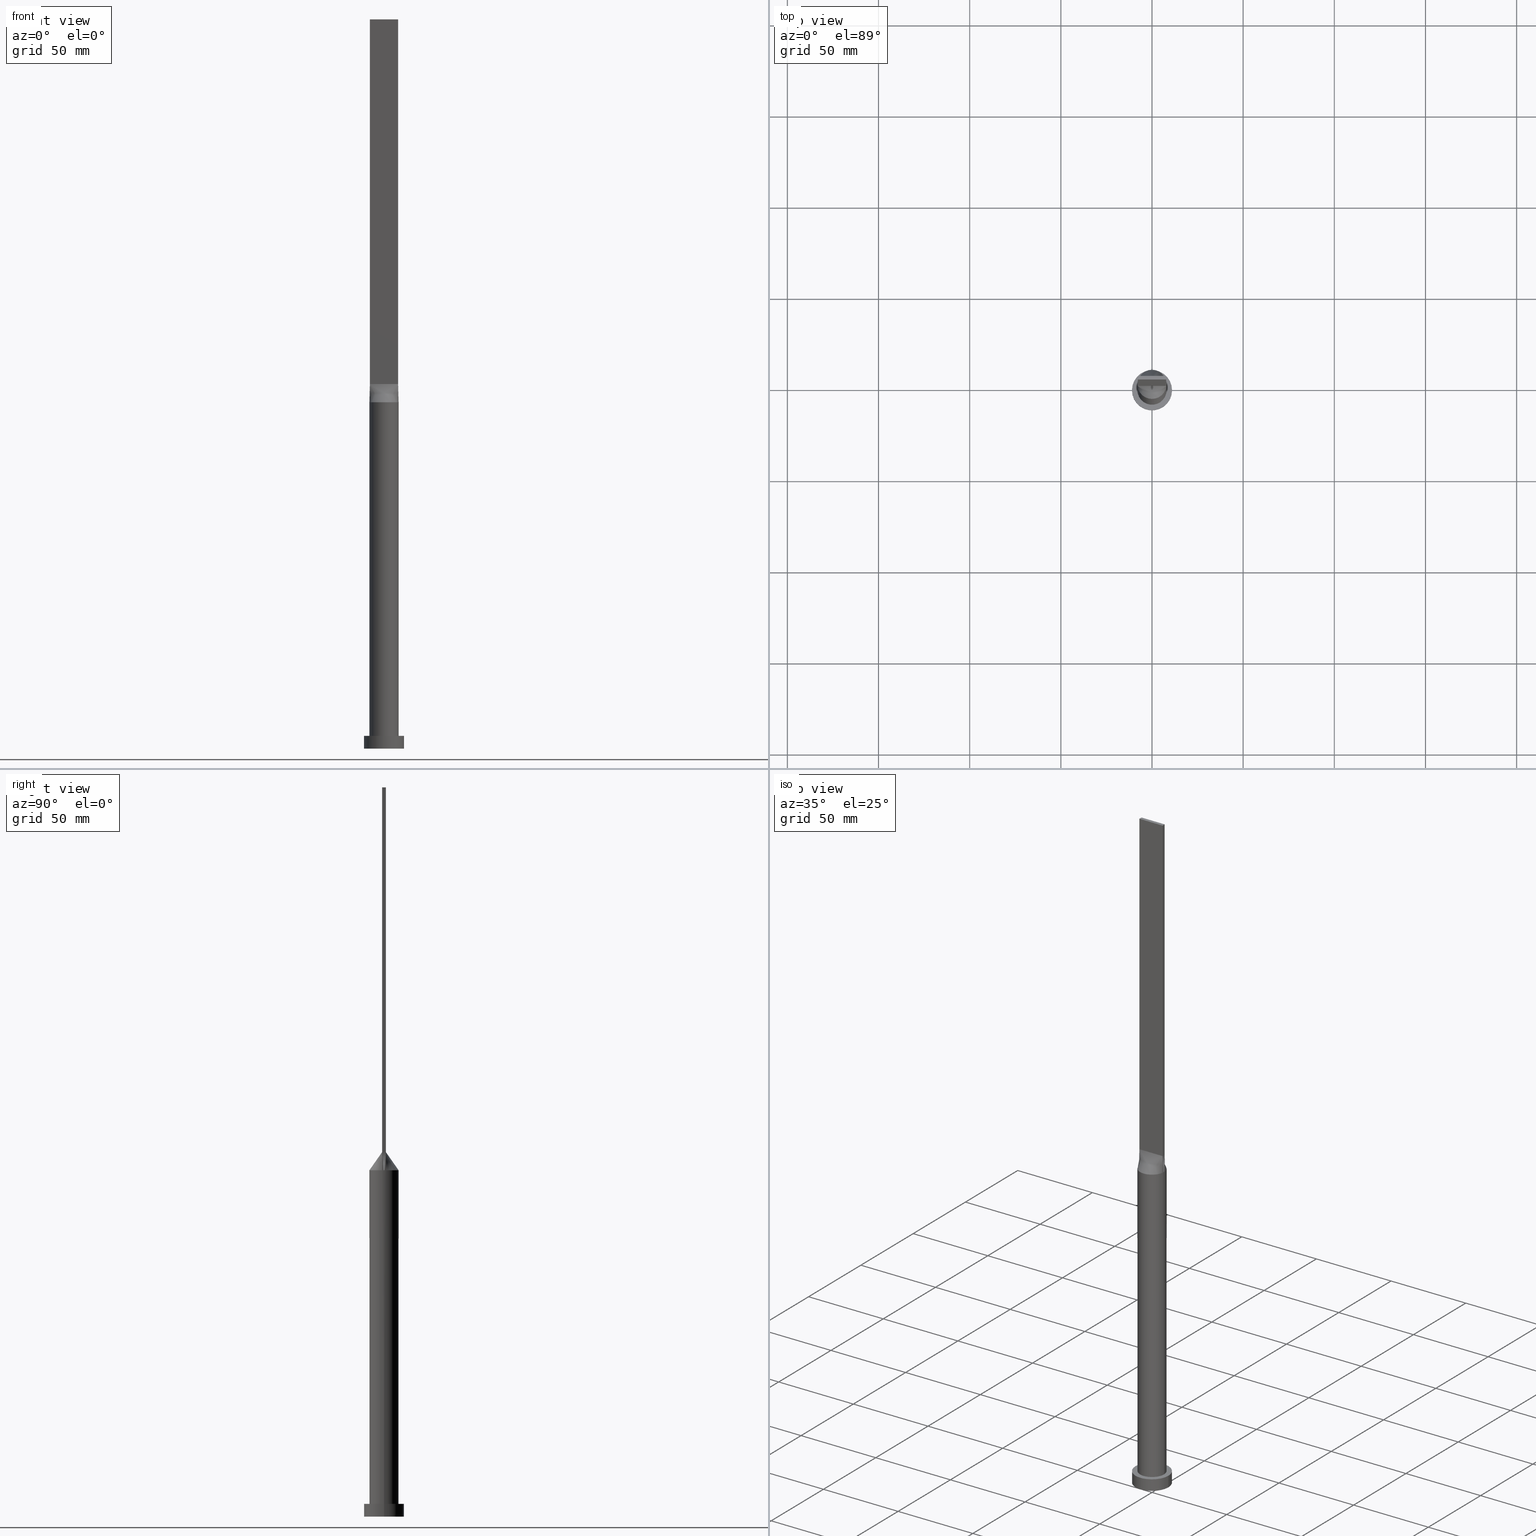
[diagram: canonical four-view strip — front | top / right | iso, engineering-drawing reading convention]
A machine part, canonical four-view strip (front | top / right | iso — engineering-drawing reading convention). The complete STEP part file that produces these views, byte-faithful:
ISO-10303-21;
HEADER;
FILE_DESCRIPTION (( 'STEP AP203' ),
    '1' );
FILE_NAME ('d282.STEP',
    '2023-02-13T08:49:00',
    ( '' ),
    ( '' ),
    'SwSTEP 2.0',
    'SolidWorks 2019',
    '' );
FILE_SCHEMA (( 'CONFIG_CONTROL_DESIGN' ));
ENDSEC;

DATA;
#1 = FACE_OUTER_BOUND ( 'NONE', #43, .T. ) ;
#2 = DIRECTION ( 'NONE',  ( 1.000000000000000000, 0.000000000000000000, -0.000000000000000000 ) ) ;
#3 = CARTESIAN_POINT ( 'NONE',  ( 1.614583333333331927, -0.9999999999999991118, 200.0000000000000568 ) ) ;
#4 = AXIS2_PLACEMENT_3D ( 'NONE', #69, #56, #309 ) ;
#5 = SECURITY_CLASSIFICATION ( '', '', #463 ) ;
#6 = CARTESIAN_POINT ( 'NONE',  ( -6.511821874825411527, -4.668925682402791821, 190.0000000000000284 ) ) ;
#7 = VERTEX_POINT ( 'NONE', #403 ) ;
#8 = CARTESIAN_POINT ( 'NONE',  ( 7.977894035085165036, -0.6853196604410977111, 190.0000000000000000 ) ) ;
#9 = AXIS2_PLACEMENT_3D ( 'NONE', #481, #600, #211 ) ;
#10 = CARTESIAN_POINT ( 'NONE',  ( 7.849610172922079521, 1.679519592204998801, 190.0000000000000284 ) ) ;
#11 = CARTESIAN_POINT ( 'NONE',  ( 0.000000000000000000, 0.000000000000000000, 7.000000000000000000 ) ) ;
#12 = ORIENTED_EDGE ( 'NONE', *, *, #468, .T. ) ;
#13 = ORIENTED_EDGE ( 'NONE', *, *, #213, .F. ) ;
#14 = CIRCLE ( 'NONE', #32, 8.000000000000000000 ) ;
#15 = VERTEX_POINT ( 'NONE', #208 ) ;
#16 = DIRECTION ( 'NONE',  ( -0.000000000000000000, -0.000000000000000000, -1.000000000000000000 ) ) ;
#17 = ORIENTED_EDGE ( 'NONE', *, *, #77, .F. ) ;
#18 = ORIENTED_EDGE ( 'NONE', *, *, #243, .F. ) ;
#19 = FACE_OUTER_BOUND ( 'NONE', #149, .T. ) ;
#20 = AXIS2_PLACEMENT_3D ( 'NONE', #532, #287, #541 ) ;
#21 = DIRECTION ( 'NONE',  ( 0.000000000000000000, 0.000000000000000000, 1.000000000000000000 ) ) ;
#22 = CARTESIAN_POINT ( 'NONE',  ( 7.104166666666666963, 1.000000000000000000, 200.0000000000000000 ) ) ;
#23 = DIRECTION ( 'NONE',  ( -0.000000000000000000, -0.000000000000000000, -1.000000000000000000 ) ) ;
#24 = CARTESIAN_POINT ( 'NONE',  ( -7.104166666666667851, 1.000000000000000000, 200.0000000000000000 ) ) ;
#25 = ADVANCED_FACE ( 'NONE', ( #501 ), #350, .T. ) ;
#26 = CARTESIAN_POINT ( 'NONE',  ( -7.750000000000000000, 1.000000000000000000, 200.0000000000000000 ) ) ;
#27 = CARTESIAN_POINT ( 'NONE',  ( -5.183259239191613688, 6.116644610143057825, 189.9999999999999716 ) ) ;
#28 = CARTESIAN_POINT ( 'NONE',  ( -7.750000000000000000, 1.000000000000000000, 200.0000000000000000 ) ) ;
#29 = CARTESIAN_POINT ( 'NONE',  ( -5.562660223239390689, 5.770452176164420521, 190.0000000000000568 ) ) ;
#30 = CIRCLE ( 'NONE', #469, 8.000000000000000000 ) ;
#31 = LINE ( 'NONE', #274, #522 ) ;
#32 = AXIS2_PLACEMENT_3D ( 'NONE', #314, #580, #521 ) ;
#33 = CARTESIAN_POINT ( 'NONE',  ( -1.614583333333333259, 1.000000000000000000, 200.0000000000000284 ) ) ;
#34 = ADVANCED_FACE ( 'NONE', ( #554 ), #451, .F. ) ;
#35 = CARTESIAN_POINT ( 'NONE',  ( -7.934222933072202721, -1.023770701041571973, 190.0000000000000000 ) ) ;
#36 = CARTESIAN_POINT ( 'NONE',  ( 1.614583333333333481, 1.000000000000000000, 200.0000000000000000 ) ) ;
#37 = CYLINDRICAL_SURFACE ( 'NONE', #201, 8.000000000000000000 ) ;
#38 = CARTESIAN_POINT ( 'NONE',  ( 0.5861720261543107435, -8.000000000000001776, 190.0000000000000853 ) ) ;
#39 = EDGE_CURVE ( 'NONE', #614, #346, #166, .T. ) ;
#40 = VECTOR ( 'NONE', #383, 1000.000000000000114 ) ;
#41 = ORGANIZATION ( 'NEUR�EN�', 'NEUR�EN�', '' ) ;
#42 = CARTESIAN_POINT ( 'NONE',  ( 3.229166666666666519, -0.9999999999999993339, 200.0000000000000284 ) ) ;
#43 = EDGE_LOOP ( 'NONE', ( #405, #516, #506, #399 ) ) ;
#44 = PLANE ( 'NONE',  #277 ) ;
#45 = CARTESIAN_POINT ( 'NONE',  ( -1.172177046651859511, -7.934824862069280726, 189.9999999999999716 ) ) ;
#46 = CARTESIAN_POINT ( 'NONE',  ( 5.183259239191615464, 6.116644610143058713, 190.0000000000000284 ) ) ;
#47 = APPLICATION_PROTOCOL_DEFINITION ( 'international standard', 'config_control_design', 1994, #390 ) ;
#48 = CARTESIAN_POINT ( 'NONE',  ( 0.5861720261543130750, 7.999999999999998224, 190.0000000000000000 ) ) ;
#49 = CARTESIAN_POINT ( 'NONE',  ( 1.172177046651855292, -7.934824862069280726, 190.0000000000000853 ) ) ;
#50 = ORIENTED_EDGE ( 'NONE', *, *, #515, .F. ) ;
#51 = CARTESIAN_POINT ( 'NONE',  ( -4.520833333333331261, -0.9999999999999986677, 200.0000000000000000 ) ) ;
#52 = CC_DESIGN_APPROVAL ( #396, ( #5 ) ) ;
#53 = ADVANCED_FACE ( 'NONE', ( #493 ), #344, .T. ) ;
#54 = EDGE_LOOP ( 'NONE', ( #332, #559, #360, #505 ) ) ;
#55 = ORIENTED_EDGE ( 'NONE', *, *, #585, .F. ) ;
#56 = DIRECTION ( 'NONE',  ( 0.000000000000000000, 0.000000000000000000, 1.000000000000000000 ) ) ;
#57 = CARTESIAN_POINT ( 'NONE',  ( -7.750000000000000000, 1.000000000000000000, 400.0000000000000000 ) ) ;
#58 = ORIENTED_EDGE ( 'NONE', *, *, #64, .F. ) ;
#59 = APPROVAL ( #245, 'NEUR�EN�' ) ;
#60 = ORIENTED_EDGE ( 'NONE', *, *, #319, .F. ) ;
#61 = CARTESIAN_POINT ( 'NONE',  ( 7.750000000000000000, 0.6666666666666671848, 200.0000000000000000 ) ) ;
#62 = B_SPLINE_SURFACE_WITH_KNOTS ( 'NONE', 3, 1, ( 
 ( #290, #398 ),
 ( #392, #598 ),
 ( #144, #335 ),
 ( #539, #345 ),
 ( #484, #549 ),
 ( #6, #51 ),
 ( #186, #591 ),
 ( #490, #85 ),
 ( #248, #450 ),
 ( #134, #96 ),
 ( #283, #137 ),
 ( #207, #406 ),
 ( #294, #331 ),
 ( #45, #495 ),
 ( #402, #202 ),
 ( #38, #89 ),
 ( #49, #640 ),
 ( #236, #286 ),
 ( #444, #3 ),
 ( #551, #599 ),
 ( #435, #636 ),
 ( #488, #42 ),
 ( #348, #240 ),
 ( #438, #191 ),
 ( #395, #594 ),
 ( #140, #545 ),
 ( #94, #114 ),
 ( #210, #465 ),
 ( #218, #461 ),
 ( #415, #101 ) ),
 .UNSPECIFIED., .F., .F., .F.,
 ( 4, 2, 2, 2, 2, 2, 2, 2, 2, 2, 2, 2, 2, 2, 4 ),
 ( 2, 2 ),
 ( 0.000000000000000000, 0.1250000000000000555, 0.1875000000000000555, 0.2500000000000000555, 0.3125000000000000000, 0.3750000000000000000, 0.4374999999999999445, 0.4999999999999999445, 0.5624999999999998890, 0.6249999999999998890, 0.6875000000000000000, 0.7500000000000000000, 0.8125000000000000000, 0.8750000000000000000, 1.000000000000000000 ),
 ( 0.000000000000000000, 1.000000000000000000 ),
 .UNSPECIFIED. ) ;
#63 = EDGE_LOOP ( 'NONE', ( #204, #193 ) ) ;
#64 = EDGE_CURVE ( 'NONE', #190, #7, #306, .T. ) ;
#65 = LINE ( 'NONE', #358, #310 ) ;
#66 = LOCAL_TIME ( 9, 49, 0.000000000000000000, #550 ) ;
#67 = EDGE_LOOP ( 'NONE', ( #260, #108, #17, #147, #195 ) ) ;
#68 = DIRECTION ( 'NONE',  ( 0.000000000000000000, 0.000000000000000000, 1.000000000000000000 ) ) ;
#69 = CARTESIAN_POINT ( 'NONE',  ( 0.000000000000000000, 0.000000000000000000, 7.000000000000000000 ) ) ;
#70 = LINE ( 'NONE', #322, #154 ) ;
#71 = CARTESIAN_POINT ( 'NONE',  ( 1.172177046651856624, 7.934824862069278950, 190.0000000000000284 ) ) ;
#72 = EDGE_CURVE ( 'NONE', #229, #198, #408, .T. ) ;
#73 = CARTESIAN_POINT ( 'NONE',  ( -7.750000000000000000, -0.6666666666666648533, 200.0000000000000000 ) ) ;
#74 = CARTESIAN_POINT ( 'NONE',  ( 0.5861720261543130750, 7.999999999999998224, 190.0000000000000000 ) ) ;
#75 = CARTESIAN_POINT ( 'NONE',  ( 8.000000000000000000, 9.797174393178825657E-16, 190.0000000000000000 ) ) ;
#76 = DIRECTION ( 'NONE',  ( 0.000000000000000000, 0.000000000000000000, 1.000000000000000000 ) ) ;
#77 = EDGE_CURVE ( 'NONE', #253, #250, #132, .T. ) ;
#78 = LINE ( 'NONE', #163, #351 ) ;
#79 = CARTESIAN_POINT ( 'NONE',  ( 0.3229166666666666297, 1.000000000000000000, 200.0000000000000000 ) ) ;
#80 = CIRCLE ( 'NONE', #448, 11.00000000000000000 ) ;
#81 = CARTESIAN_POINT ( 'NONE',  ( 11.00000000000000000, 1.347111479062088405E-15, 0.000000000000000000 ) ) ;
#82 = FACE_OUTER_BOUND ( 'NONE', #216, .T. ) ;
#83 = DATE_TIME_ROLE ( 'creation_date' ) ;
#84 = CARTESIAN_POINT ( 'NONE',  ( -3.862537548001455878, 7.028047916340264045, 190.0000000000000284 ) ) ;
#85 = CARTESIAN_POINT ( 'NONE',  ( -3.552083333333331705, -0.9999999999999986677, 200.0000000000000000 ) ) ;
#86 = DIRECTION ( 'NONE',  ( -1.000000000000000000, 0.000000000000000000, 0.000000000000000000 ) ) ;
#87 = CARTESIAN_POINT ( 'NONE',  ( -0.5861720261543129640, 7.999999999999998224, 189.9999999999999432 ) ) ;
#88 = AXIS2_PLACEMENT_3D ( 'NONE', #388, #441, #605 ) ;
#89 = CARTESIAN_POINT ( 'NONE',  ( 0.3229166666666669627, -0.9999999999999991118, 200.0000000000000284 ) ) ;
#90 = EDGE_CURVE ( 'NONE', #346, #555, #165, .T. ) ;
#91 = VERTEX_POINT ( 'NONE', #279 ) ;
#92 = CARTESIAN_POINT ( 'NONE',  ( 7.934252830235720033, 1.023774570959714802, 190.0000000000000000 ) ) ;
#93 = VECTOR ( 'NONE', #231, 1000.000000000000000 ) ;
#94 = CARTESIAN_POINT ( 'NONE',  ( 7.192469010134844964, -3.526369025759696907, 189.9999999999999432 ) ) ;
#95 = CARTESIAN_POINT ( 'NONE',  ( 1.172177046651856624, 7.934824862069278950, 190.0000000000000284 ) ) ;
#96 = CARTESIAN_POINT ( 'NONE',  ( -2.583333333333332593, -0.9999999999999988898, 200.0000000000000000 ) ) ;
#97 = CALENDAR_DATE ( 2023, 13, 2 ) ;
#98 = EDGE_CURVE ( 'NONE', #563, #91, #572, .T. ) ;
#99 = LINE ( 'NONE', #244, #256 ) ;
#100 = CALENDAR_DATE ( 2023, 13, 2 ) ;
#101 = CARTESIAN_POINT ( 'NONE',  ( 7.750000000000000000, -0.9999999999999997780, 200.0000000000000000 ) ) ;
#102 = CIRCLE ( 'NONE', #199, 8.000000000000000000 ) ;
#103 = CC_DESIGN_SECURITY_CLASSIFICATION ( #5, ( #120 ) ) ;
#104 = ORIENTED_EDGE ( 'NONE', *, *, #494, .F. ) ;
#105 = ORIENTED_EDGE ( 'NONE', *, *, #624, .F. ) ;
#106 = CARTESIAN_POINT ( 'NONE',  ( -11.00000000000000000, 0.000000000000000000, 7.000000000000000000 ) ) ;
#107 = CARTESIAN_POINT ( 'NONE',  ( 7.849610172922079521, 1.679519592204998801, 190.0000000000000284 ) ) ;
#108 = ORIENTED_EDGE ( 'NONE', *, *, #254, .T. ) ;
#109 = APPROVAL_STATUS ( 'not_yet_approved' ) ;
#110 = DIRECTION ( 'NONE',  ( -0.000000000000000000, -0.000000000000000000, -1.000000000000000000 ) ) ;
#111 = DIRECTION ( 'NONE',  ( 0.000000000000000000, 0.000000000000000000, 1.000000000000000000 ) ) ;
#112 = CC_DESIGN_APPROVAL ( #519, ( #120 ) ) ;
#113 = COORDINATED_UNIVERSAL_TIME_OFFSET ( 1, 0, .AHEAD. ) ;
#114 = CARTESIAN_POINT ( 'NONE',  ( 5.489583333333333925, -0.9999999999999995559, 200.0000000000000000 ) ) ;
#115 = ORIENTED_EDGE ( 'NONE', *, *, #39, .T. ) ;
#116 = LINE ( 'NONE', #75, #215 ) ;
#117 = AXIS2_PLACEMENT_3D ( 'NONE', #548, #443, #2 ) ;
#118 = DIRECTION ( 'NONE',  ( 1.000000000000000000, 0.000000000000000000, -0.000000000000000000 ) ) ;
#119 = CARTESIAN_POINT ( 'NONE',  ( -4.520833333333333925, 1.000000000000000000, 200.0000000000000568 ) ) ;
#120 = PRODUCT_DEFINITION_FORMATION_WITH_SPECIFIED_SOURCE ( 'LIBOVOLN�', '', #529, .NOT_KNOWN. ) ;
#121 = DIRECTION ( 'NONE',  ( -0.000000000000000000, -0.000000000000000000, -1.000000000000000000 ) ) ;
#122 = CARTESIAN_POINT ( 'NONE',  ( -7.842111466536100473, -1.011885350520785209, 195.0000000000000000 ) ) ;
#123 = CARTESIAN_POINT ( 'NONE',  ( -2.847317194822260422, 7.497028652483947120, 190.0000000000000284 ) ) ;
#124 = EDGE_CURVE ( 'NONE', #496, #418, #203, .T. ) ;
#125 = CARTESIAN_POINT ( 'NONE',  ( -7.750000000000000000, 0.3333333333333349247, 200.0000000000000000 ) ) ;
#126 = CARTESIAN_POINT ( 'NONE',  ( 6.226863775955932212, 5.046530946333158241, 190.0000000000000853 ) ) ;
#127 = VERTEX_POINT ( 'NONE', #485 ) ;
#128 = CARTESIAN_POINT ( 'NONE',  ( -7.750000000000000000, -0.9999999999999986677, 200.0000000000000000 ) ) ;
#129 = DIRECTION ( 'NONE',  ( 0.01841911599500828389, -0.002376660128387961778, 0.9998275289531671772 ) ) ;
#130 = CARTESIAN_POINT ( 'NONE',  ( -7.750000000000000000, -0.9999999999999986677, 400.0000000000000000 ) ) ;
#131 = PERSON_AND_ORGANIZATION_ROLE ( 'creator' ) ;
#132 = LINE ( 'NONE', #122, #497 ) ;
#133 = CARTESIAN_POINT ( 'NONE',  ( -6.511821874825407974, 4.668925682402791821, 190.0000000000000284 ) ) ;
#134 = CARTESIAN_POINT ( 'NONE',  ( -4.333237558274724677, -6.745559271922134670, 190.0000000000000284 ) ) ;
#135 = CARTESIAN_POINT ( 'NONE',  ( 6.994548530637815453, 3.908833842696238570, 189.9999999999999716 ) ) ;
#136 = CALENDAR_DATE ( 2023, 13, 2 ) ;
#137 = CARTESIAN_POINT ( 'NONE',  ( -2.260416666666665630, -0.9999999999999991118, 200.0000000000000284 ) ) ;
#138 = VECTOR ( 'NONE', #16, 1000.000000000000000 ) ;
#139 = LINE ( 'NONE', #492, #259 ) ;
#140 = CARTESIAN_POINT ( 'NONE',  ( 6.994548530637813677, -3.908833842696238570, 189.9999999999999147 ) ) ;
#141 = CARTESIAN_POINT ( 'NONE',  ( 6.511821874825409751, 4.668925682402791821, 190.0000000000000284 ) ) ;
#142 = CARTESIAN_POINT ( 'NONE',  ( -1.172177046651856402, 7.934824862069282503, 190.0000000000000568 ) ) ;
#143 = AXIS2_PLACEMENT_3D ( 'NONE', #11, #258, #161 ) ;
#144 = CARTESIAN_POINT ( 'NONE',  ( -7.675166908885238115, -2.399868494543664799, 189.9999999999999716 ) ) ;
#145 = ORIENTED_EDGE ( 'NONE', *, *, #325, .F. ) ;
#146 = ADVANCED_FACE ( 'NONE', ( #634 ), #547, .T. ) ;
#147 = ORIENTED_EDGE ( 'NONE', *, *, #413, .F. ) ;
#148 = CARTESIAN_POINT ( 'NONE',  ( 0.000000000000000000, 0.000000000000000000, 0.000000000000000000 ) ) ;
#149 = EDGE_LOOP ( 'NONE', ( #150, #378, #298, #618, #104 ) ) ;
#150 = ORIENTED_EDGE ( 'NONE', *, *, #381, .T. ) ;
#151 = CARTESIAN_POINT ( 'NONE',  ( -7.750000000000000000, 1.000000000000000000, 200.0000000000000000 ) ) ;
#152 = CARTESIAN_POINT ( 'NONE',  ( 7.999729586091648414, 0.3426598302205475788, 190.0000000000000000 ) ) ;
#153 = DIRECTION ( 'NONE',  ( -1.000000000000000000, 0.000000000000000000, 0.000000000000000000 ) ) ;
#154 = VECTOR ( 'NONE', #121, 1000.000000000000000 ) ;
#155 = CARTESIAN_POINT ( 'NONE',  ( 7.750000000000000000, 1.000000000000000000, 200.0000000000000000 ) ) ;
#156 = UNCERTAINTY_MEASURE_WITH_UNIT (LENGTH_MEASURE( 1.000000000000000082E-05 ), #630, 'distance_accuracy_value', 'NONE');
#157 = CARTESIAN_POINT ( 'NONE',  ( 7.934222933072200945, 1.023770701041573084, 190.0000000000000000 ) ) ;
#158 = EDGE_LOOP ( 'NONE', ( #517, #299, #291, #564 ) ) ;
#159 = CYLINDRICAL_SURFACE ( 'NONE', #143, 11.00000000000000000 ) ;
#160 = CALENDAR_DATE ( 2023, 13, 2 ) ;
#161 = DIRECTION ( 'NONE',  ( -1.000000000000000000, 0.000000000000000000, 0.000000000000000000 ) ) ;
#162 = ADVANCED_FACE ( 'NONE', ( #385 ), #584, .F. ) ;
#163 = CARTESIAN_POINT ( 'NONE',  ( -7.750000000000000000, 1.000000000000000000, 400.0000000000000000 ) ) ;
#164 = FACE_BOUND ( 'NONE', #612, .T. ) ;
#165 = LINE ( 'NONE', #357, #177 ) ;
#166 = B_SPLINE_CURVE_WITH_KNOTS ( 'NONE', 3,
 ( #595, #107, #508, #241, #439, #141, #292, #491, #46, #536, #234, #638, #189, #95, #48, #87, #142, #394, #593, #84, #340, #194, #282, #179, #133, #397, #544, #185, #330, #246 ),
 .UNSPECIFIED., .F., .F.,
 ( 4, 2, 2, 2, 2, 2, 2, 2, 2, 2, 2, 2, 2, 2, 4 ),
 ( 0.000000000000000000, 0.1250000000000000000, 0.1875000000000000000, 0.2500000000000000000, 0.3125000000000000000, 0.3750000000000000000, 0.4375000000000000000, 0.5000000000000000000, 0.5625000000000000000, 0.6250000000000000000, 0.6875000000000000000, 0.7500000000000000000, 0.8125000000000000000, 0.8750000000000000000, 1.000000000000000000 ),
 .UNSPECIFIED. ) ;
#167 = CARTESIAN_POINT ( 'NONE',  ( -2.302877821226935851, 7.683241396761610886, 189.9999999999999716 ) ) ;
#168 = AXIS2_PLACEMENT_3D ( 'NONE', #625, #230, #76 ) ;
#169 = CARTESIAN_POINT ( 'NONE',  ( 0.000000000000000000, 0.000000000000000000, 190.0000000000000000 ) ) ;
#170 = CARTESIAN_POINT ( 'NONE',  ( -6.226863775955933100, 5.046530946333157353, 190.0000000000000284 ) ) ;
#171 =( GEOMETRIC_REPRESENTATION_CONTEXT ( 3 ) GLOBAL_UNCERTAINTY_ASSIGNED_CONTEXT ( ( #156 ) ) GLOBAL_UNIT_ASSIGNED_CONTEXT ( ( #630, #200, #498 ) ) REPRESENTATION_CONTEXT ( 'NONE', 'WORKASPACE' ) );
#172 = LINE ( 'NONE', #278, #40 ) ;
#173 = CARTESIAN_POINT ( 'NONE',  ( 5.183259239191615464, 6.116644610143058713, 190.0000000000000284 ) ) ;
#174 = ORIENTED_EDGE ( 'NONE', *, *, #445, .T. ) ;
#175 = DIRECTION ( 'NONE',  ( 1.000000000000000000, -6.994852725712931474E-17, 0.000000000000000000 ) ) ;
#176 = CARTESIAN_POINT ( 'NONE',  ( -7.750000000000000000, 1.000000000000000000, 200.0000000000000000 ) ) ;
#177 = VECTOR ( 'NONE', #129, 1000.000000000000114 ) ;
#178 = CARTESIAN_POINT ( 'NONE',  ( 0.000000000000000000, 0.000000000000000000, 0.000000000000000000 ) ) ;
#179 = CARTESIAN_POINT ( 'NONE',  ( -6.226863775955933100, 5.046530946333157353, 190.0000000000000284 ) ) ;
#180 = CARTESIAN_POINT ( 'NONE',  ( -7.849610172922081297, 1.679519592204999023, 189.9999999999999716 ) ) ;
#181 = ORIENTED_EDGE ( 'NONE', *, *, #197, .T. ) ;
#182 = AXIS2_PLACEMENT_3D ( 'NONE', #514, #68, #264 ) ;
#183 = ADVANCED_FACE ( 'NONE', ( #82 ), #315, .F. ) ;
#184 = APPROVAL_ROLE ( '' ) ;
#185 = CARTESIAN_POINT ( 'NONE',  ( -7.675166908885236339, 2.399868494543667907, 189.9999999999999432 ) ) ;
#186 = CARTESIAN_POINT ( 'NONE',  ( -6.226863775955933988, -5.046530946333157353, 190.0000000000000568 ) ) ;
#187 = PERSON_AND_ORGANIZATION ( #437, #41 ) ;
#188 = CARTESIAN_POINT ( 'NONE',  ( 7.934222933072200945, 1.023770701041573972, 190.0000000000000000 ) ) ;
#189 = CARTESIAN_POINT ( 'NONE',  ( 2.302877821226935406, 7.683241396761612663, 190.0000000000000284 ) ) ;
#190 = VERTEX_POINT ( 'NONE', #273 ) ;
#191 = CARTESIAN_POINT ( 'NONE',  ( 4.197916666666666963, -0.9999999999999993339, 200.0000000000000284 ) ) ;
#192 = ORIENTED_EDGE ( 'NONE', *, *, #368, .T. ) ;
#193 = ORIENTED_EDGE ( 'NONE', *, *, #359, .T. ) ;
#194 = CARTESIAN_POINT ( 'NONE',  ( -5.183259239191613688, 6.116644610143057825, 189.9999999999999716 ) ) ;
#195 = ORIENTED_EDGE ( 'NONE', *, *, #90, .F. ) ;
#196 = DIRECTION ( 'NONE',  ( 1.000000000000000000, 0.000000000000000000, -0.000000000000000000 ) ) ;
#197 = EDGE_CURVE ( 'NONE', #15, #127, #428, .T. ) ;
#198 = VERTEX_POINT ( 'NONE', #537 ) ;
#199 = AXIS2_PLACEMENT_3D ( 'NONE', #409, #353, #361 ) ;
#200 =( NAMED_UNIT ( * ) PLANE_ANGLE_UNIT ( ) SI_UNIT ( $, .RADIAN. ) );
#201 = AXIS2_PLACEMENT_3D ( 'NONE', #597, #289, #86 ) ;
#202 = CARTESIAN_POINT ( 'NONE',  ( -0.3229166666666661301, -0.9999999999999991118, 200.0000000000000284 ) ) ;
#203 = LINE ( 'NONE', #324, #458 ) ;
#204 = ORIENTED_EDGE ( 'NONE', *, *, #64, .T. ) ;
#205 = SHAPE_DEFINITION_REPRESENTATION ( #337, #446 ) ;
#206 = ORIENTED_EDGE ( 'NONE', *, *, #98, .T. ) ;
#207 = CARTESIAN_POINT ( 'NONE',  ( -2.847317194822263531, -7.497028652483947120, 189.9999999999999716 ) ) ;
#208 = CARTESIAN_POINT ( 'NONE',  ( 7.750000000000000000, -0.9999999999999997780, 200.0000000000000000 ) ) ;
#209 = ORIENTED_EDGE ( 'NONE', *, *, #72, .T. ) ;
#210 = CARTESIAN_POINT ( 'NONE',  ( 7.675166908885234562, -2.399868494543666131, 189.9999999999999432 ) ) ;
#211 = DIRECTION ( 'NONE',  ( 1.000000000000000000, 0.000000000000000000, 0.000000000000000000 ) ) ;
#212 = ORIENTED_EDGE ( 'NONE', *, *, #336, .F. ) ;
#213 = EDGE_CURVE ( 'NONE', #614, #127, #99, .T. ) ;
#214 = CARTESIAN_POINT ( 'NONE',  ( -7.934257051336532029, -1.023775119746132001, 190.0000000000000000 ) ) ;
#215 = VECTOR ( 'NONE', #23, 1000.000000000000000 ) ;
#216 = EDGE_LOOP ( 'NONE', ( #181, #105, #534, #407 ) ) ;
#217 = ORIENTED_EDGE ( 'NONE', *, *, #567, .F. ) ;
#218 = CARTESIAN_POINT ( 'NONE',  ( 7.849610172922084850, -1.679519592204998357, 190.0000000000000000 ) ) ;
#219 = CC_DESIGN_PERSON_AND_ORGANIZATION_ASSIGNMENT ( #187, #487, ( #120 ) ) ;
#220 = CARTESIAN_POINT ( 'NONE',  ( -7.750000000000000000, 1.000000000000000000, 400.0000000000000000 ) ) ;
#221 = ADVANCED_FACE ( 'NONE', ( #247 ), #499, .F. ) ;
#222 = DIRECTION ( 'NONE',  ( 1.000000000000000000, 0.000000000000000000, 0.000000000000000000 ) ) ;
#223 = PLANE ( 'NONE',  #635 ) ;
#224 = CARTESIAN_POINT ( 'NONE',  ( 3.229166666666666519, 1.000000000000000000, 200.0000000000000000 ) ) ;
#225 = ADVANCED_FACE ( 'NONE', ( #1 ), #62, .T. ) ;
#226 = FACE_OUTER_BOUND ( 'NONE', #63, .T. ) ;
#227 = DIRECTION ( 'NONE',  ( 6.994852725712931474E-17, 1.000000000000000000, -0.000000000000000000 ) ) ;
#228 = CARTESIAN_POINT ( 'NONE',  ( -7.750000000000000000, 0.6666666666666676289, 200.0000000000000000 ) ) ;
#229 = VERTEX_POINT ( 'NONE', #467 ) ;
#230 = DIRECTION ( 'NONE',  ( -1.000000000000000000, 0.000000000000000000, 0.000000000000000000 ) ) ;
#231 = DIRECTION ( 'NONE',  ( -1.000000000000000000, -0.000000000000000000, -0.000000000000000000 ) ) ;
#232 = CARTESIAN_POINT ( 'NONE',  ( -3.229166666666666519, 1.000000000000000000, 200.0000000000000568 ) ) ;
#233 = APPLICATION_CONTEXT ( 'configuration controlled 3d designs of mechanical parts and assemblies' ) ;
#234 = CARTESIAN_POINT ( 'NONE',  ( 3.862537548001455878, 7.028047916340264933, 190.0000000000000000 ) ) ;
#235 = CARTESIAN_POINT ( 'NONE',  ( -6.994548530637814565, 3.908833842696238570, 189.9999999999999716 ) ) ;
#236 = CARTESIAN_POINT ( 'NONE',  ( 2.302877821226934074, -7.683241396761609998, 189.9999999999999432 ) ) ;
#237 = CIRCLE ( 'NONE', #427, 8.000000000000000000 ) ;
#238 = VECTOR ( 'NONE', #477, 1000.000000000000000 ) ;
#239 = DESIGN_CONTEXT ( 'detailed design', #233, 'design' ) ;
#240 = CARTESIAN_POINT ( 'NONE',  ( 3.552083333333333481, -0.9999999999999993339, 200.0000000000000284 ) ) ;
#241 = CARTESIAN_POINT ( 'NONE',  ( 7.192469010134847629, 3.526369025759696907, 189.9999999999999716 ) ) ;
#242 = ORIENTED_EDGE ( 'NONE', *, *, #39, .F. ) ;
#243 = EDGE_CURVE ( 'NONE', #190, #91, #412, .T. ) ;
#244 = CARTESIAN_POINT ( 'NONE',  ( 7.842111466536100473, 1.011885350520786542, 195.0000000000000000 ) ) ;
#245 = APPROVAL_STATUS ( 'not_yet_approved' ) ;
#246 = CARTESIAN_POINT ( 'NONE',  ( -7.934264564332944580, 1.023776086464161406, 190.0000000000000000 ) ) ;
#247 = FACE_OUTER_BOUND ( 'NONE', #404, .T. ) ;
#248 = CARTESIAN_POINT ( 'NONE',  ( -5.183259239191617240, -6.116644610143057825, 190.0000000000000284 ) ) ;
#249 = DIRECTION ( 'NONE',  ( -0.000000000000000000, -0.000000000000000000, -1.000000000000000000 ) ) ;
#250 = VERTEX_POINT ( 'NONE', #214 ) ;
#251 = LINE ( 'NONE', #504, #566 ) ;
#252 = DIRECTION ( 'NONE',  ( 1.000000000000000000, 0.000000000000000000, -0.000000000000000000 ) ) ;
#253 = VERTEX_POINT ( 'NONE', #615 ) ;
#254 = EDGE_CURVE ( 'NONE', #603, #250, #237, .T. ) ;
#255 = DIRECTION ( 'NONE',  ( 1.000000000000000000, 0.000000000000000000, 0.000000000000000000 ) ) ;
#256 = VECTOR ( 'NONE', #342, 1000.000000000000114 ) ;
#257 = CC_DESIGN_DATE_AND_TIME_ASSIGNMENT ( #602, #416, ( #5 ) ) ;
#258 = DIRECTION ( 'NONE',  ( -0.000000000000000000, -0.000000000000000000, -1.000000000000000000 ) ) ;
#259 = VECTOR ( 'NONE', #641, 1000.000000000000000 ) ;
#260 = ORIENTED_EDGE ( 'NONE', *, *, #308, .T. ) ;
#261 = B_SPLINE_SURFACE_WITH_KNOTS ( 'NONE', 3, 1, ( 
 ( #553, #454 ),
 ( #8, #608 ),
 ( #417, #617 ),
 ( #152, #558 ),
 ( #507, #61 ),
 ( #157, #561 ) ),
 .UNSPECIFIED., .F., .F., .F.,
 ( 4, 2, 4 ),
 ( 2, 2 ),
 ( 0.000000000000000000, 0.5000000000000000000, 1.000000000000000000 ),
 ( 0.000000000000000000, 1.000000000000000000 ),
 .UNSPECIFIED. ) ;
#262 = LINE ( 'NONE', #151, #556 ) ;
#263 = ADVANCED_FACE ( 'NONE', ( #363 ), #159, .T. ) ;
#264 = DIRECTION ( 'NONE',  ( 1.000000000000000000, 9.769962616701377556E-15, 0.000000000000000000 ) ) ;
#265 = CARTESIAN_POINT ( 'NONE',  ( -7.750000000000000000, -0.3333333333333312609, 200.0000000000000000 ) ) ;
#266 = VECTOR ( 'NONE', #175, 1000.000000000000000 ) ;
#267 = CARTESIAN_POINT ( 'NONE',  ( 0.6458333333333333703, 1.000000000000000000, 200.0000000000000000 ) ) ;
#268 = LINE ( 'NONE', #326, #576 ) ;
#269 = CARTESIAN_POINT ( 'NONE',  ( -0.5861720261543129640, 7.999999999999998224, 189.9999999999999432 ) ) ;
#270 = PRODUCT_RELATED_PRODUCT_CATEGORY ( 'detail', '', ( #529 ) ) ;
#271 = CARTESIAN_POINT ( 'NONE',  ( -7.750000000000000000, -0.9999999999999986677, 400.0000000000000000 ) ) ;
#272 = ORIENTED_EDGE ( 'NONE', *, *, #336, .T. ) ;
#273 = CARTESIAN_POINT ( 'NONE',  ( -11.00000000000000000, 0.000000000000000000, 7.000000000000000000 ) ) ;
#274 = CARTESIAN_POINT ( 'NONE',  ( -7.750000000000000000, -0.9999999999999986677, 400.0000000000000000 ) ) ;
#275 = CARTESIAN_POINT ( 'NONE',  ( -0.3229166666666667407, 1.000000000000000000, 200.0000000000000000 ) ) ;
#276 = CIRCLE ( 'NONE', #4, 11.00000000000000000 ) ;
#277 = AXIS2_PLACEMENT_3D ( 'NONE', #401, #489, #343 ) ;
#278 = CARTESIAN_POINT ( 'NONE',  ( 7.842111466536100473, -1.011885350520787430, 195.0000000000000000 ) ) ;
#279 = CARTESIAN_POINT ( 'NONE',  ( -11.00000000000000000, 0.000000000000000000, 0.000000000000000000 ) ) ;
#280 = CARTESIAN_POINT ( 'NONE',  ( 2.302877821226935406, 7.683241396761612663, 190.0000000000000284 ) ) ;
#281 = PERSON_AND_ORGANIZATION ( #437, #41 ) ;
#282 = CARTESIAN_POINT ( 'NONE',  ( -5.562660223239390689, 5.770452176164420521, 190.0000000000000568 ) ) ;
#283 = CARTESIAN_POINT ( 'NONE',  ( -3.862537548001458987, -7.028047916340261381, 190.0000000000000000 ) ) ;
#284 = DIRECTION ( 'NONE',  ( 0.000000000000000000, 1.000000000000000000, 0.000000000000000000 ) ) ;
#285 = COORDINATED_UNIVERSAL_TIME_OFFSET ( 1, 0, .AHEAD. ) ;
#286 = CARTESIAN_POINT ( 'NONE',  ( 1.291666666666665630, -0.9999999999999991118, 200.0000000000000284 ) ) ;
#287 = DIRECTION ( 'NONE',  ( 0.000000000000000000, 0.000000000000000000, 1.000000000000000000 ) ) ;
#288 = CIRCLE ( 'NONE', #578, 8.000000000000000000 ) ;
#289 = DIRECTION ( 'NONE',  ( -0.000000000000000000, -0.000000000000000000, -1.000000000000000000 ) ) ;
#290 = CARTESIAN_POINT ( 'NONE',  ( -7.934222933072202721, -1.023770701041571973, 190.0000000000000000 ) ) ;
#291 = ORIENTED_EDGE ( 'NONE', *, *, #468, .F. ) ;
#292 = CARTESIAN_POINT ( 'NONE',  ( 6.226863775955932212, 5.046530946333158241, 190.0000000000000853 ) ) ;
#293 = PERSON_AND_ORGANIZATION ( #437, #41 ) ;
#294 = CARTESIAN_POINT ( 'NONE',  ( -2.302877821226939403, -7.683241396761614439, 190.0000000000000568 ) ) ;
#295 = EDGE_LOOP ( 'NONE', ( #115, #453, #456, #13 ) ) ;
#296 = DATE_AND_TIME ( #97, #66 ) ;
#297 = DIRECTION ( 'NONE',  ( -0.000000000000000000, 1.000000000000000000, -0.000000000000000000 ) ) ;
#298 = ORIENTED_EDGE ( 'NONE', *, *, #213, .T. ) ;
#299 = ORIENTED_EDGE ( 'NONE', *, *, #596, .F. ) ;
#300 = CARTESIAN_POINT ( 'NONE',  ( 0.000000000000000000, 0.000000000000000000, 190.0000000000000000 ) ) ;
#301 = ORIENTED_EDGE ( 'NONE', *, *, #381, .F. ) ;
#302 = EDGE_LOOP ( 'NONE', ( #174, #380, #145, #562 ) ) ;
#303 = PERSON_AND_ORGANIZATION ( #437, #41 ) ;
#304 = CARTESIAN_POINT ( 'NONE',  ( -7.934264564332944580, 1.023776086464161406, 190.0000000000000000 ) ) ;
#305 = ORIENTED_EDGE ( 'NONE', *, *, #359, .F. ) ;
#306 = CIRCLE ( 'NONE', #20, 11.00000000000000000 ) ;
#307 = FACE_OUTER_BOUND ( 'NONE', #67, .T. ) ;
#308 = EDGE_CURVE ( 'NONE', #346, #603, #102, .T. ) ;
#309 = DIRECTION ( 'NONE',  ( 1.000000000000000000, 0.000000000000000000, 0.000000000000000000 ) ) ;
#310 = VECTOR ( 'NONE', #110, 1000.000000000000000 ) ;
#311 = LOCAL_TIME ( 9, 49, 0.000000000000000000, #113 ) ;
#312 = COORDINATED_UNIVERSAL_TIME_OFFSET ( 1, 0, .AHEAD. ) ;
#313 = DIRECTION ( 'NONE',  ( 0.000000000000000000, 0.000000000000000000, 1.000000000000000000 ) ) ;
#314 = CARTESIAN_POINT ( 'NONE',  ( 0.000000000000000000, 0.000000000000000000, 190.0000000000000000 ) ) ;
#315 = PLANE ( 'NONE',  #168 ) ;
#316 = CYLINDRICAL_SURFACE ( 'NONE', #373, 11.00000000000000000 ) ;
#317 = CARTESIAN_POINT ( 'NONE',  ( -5.166666666666668739, 1.000000000000000000, 200.0000000000000568 ) ) ;
#318 = APPROVAL_PERSON_ORGANIZATION ( #552, #396, #568 ) ;
#319 = EDGE_CURVE ( 'NONE', #603, #229, #65, .T. ) ;
#320 = LINE ( 'NONE', #271, #238 ) ;
#321 = CARTESIAN_POINT ( 'NONE',  ( -2.260416666666666519, 1.000000000000000000, 200.0000000000000284 ) ) ;
#322 = CARTESIAN_POINT ( 'NONE',  ( 11.00000000000000000, 1.347111479062088405E-15, 7.000000000000000000 ) ) ;
#323 = CARTESIAN_POINT ( 'NONE',  ( 2.583333333333333481, 1.000000000000000000, 200.0000000000000000 ) ) ;
#324 = CARTESIAN_POINT ( 'NONE',  ( 7.750000000000000000, -0.9999999999999997780, 400.0000000000000000 ) ) ;
#325 = EDGE_CURVE ( 'NONE', #418, #328, #251, .T. ) ;
#326 = CARTESIAN_POINT ( 'NONE',  ( -7.750000000000000000, 1.000000000000000000, 400.0000000000000000 ) ) ;
#327 = CARTESIAN_POINT ( 'NONE',  ( 7.750000000000000000, 1.000000000000000000, 200.0000000000000000 ) ) ;
#328 = VERTEX_POINT ( 'NONE', #220 ) ;
#329 = DATE_AND_TIME ( #535, #375 ) ;
#330 = CARTESIAN_POINT ( 'NONE',  ( -7.849610172922081297, 1.679519592204999023, 189.9999999999999716 ) ) ;
#331 = CARTESIAN_POINT ( 'NONE',  ( -1.291666666666666741, -0.9999999999999991118, 200.0000000000000568 ) ) ;
#332 = ORIENTED_EDGE ( 'NONE', *, *, #436, .T. ) ;
#333 = MANIFOLD_SOLID_BREP ( 'P�idat vysunut�m5', #433 ) ;
#334 = DATE_AND_TIME ( #136, #611 ) ;
#335 = CARTESIAN_POINT ( 'NONE',  ( -6.458333333333333037, -0.9999999999999986677, 200.0000000000000000 ) ) ;
#336 = EDGE_CURVE ( 'NONE', #198, #229, #30, .T. ) ;
#337 = PRODUCT_DEFINITION_SHAPE ( 'NONE', 'NONE',  #500 ) ;
#338 = AXIS2_PLACEMENT_3D ( 'NONE', #148, #440, #196 ) ;
#339 = FACE_OUTER_BOUND ( 'NONE', #302, .T. ) ;
#340 = CARTESIAN_POINT ( 'NONE',  ( -4.333237558274722900, 6.745559271922134670, 190.0000000000000000 ) ) ;
#341 = ORIENTED_EDGE ( 'NONE', *, *, #72, .F. ) ;
#342 = DIRECTION ( 'NONE',  ( -0.01841911599500828389, -0.002376660128388048514, 0.9998275289531671772 ) ) ;
#343 = DIRECTION ( 'NONE',  ( 0.000000000000000000, -0.000000000000000000, -1.000000000000000000 ) ) ;
#344 = PLANE ( 'NONE',  #117 ) ;
#345 = CARTESIAN_POINT ( 'NONE',  ( -5.489583333333332149, -0.9999999999999986677, 200.0000000000000000 ) ) ;
#346 = VERTEX_POINT ( 'NONE', #304 ) ;
#347 = PERSON_AND_ORGANIZATION ( #437, #41 ) ;
#348 = CARTESIAN_POINT ( 'NONE',  ( 5.562660223239390689, -5.770452176164421410, 190.0000000000000568 ) ) ;
#349 = DIRECTION ( 'NONE',  ( 0.000000000000000000, -1.000000000000000000, 0.000000000000000000 ) ) ;
#350 = CYLINDRICAL_SURFACE ( 'NONE', #369, 8.000000000000000000 ) ;
#351 = VECTOR ( 'NONE', #422, 1000.000000000000000 ) ;
#352 = DATE_AND_TIME ( #100, #311 ) ;
#353 = DIRECTION ( 'NONE',  ( 0.000000000000000000, 0.000000000000000000, 1.000000000000000000 ) ) ;
#354 = CC_DESIGN_PERSON_AND_ORGANIZATION_ASSIGNMENT ( #633, #131, ( #500 ) ) ;
#355 = DIRECTION ( 'NONE',  ( -0.000000000000000000, 0.000000000000000000, -1.000000000000000000 ) ) ;
#356 = ORIENTED_EDGE ( 'NONE', *, *, #308, .F. ) ;
#357 = CARTESIAN_POINT ( 'NONE',  ( -7.842111466536100473, 1.011885350520786098, 195.0000000000000000 ) ) ;
#358 = CARTESIAN_POINT ( 'NONE',  ( -8.000000000000000000, 0.000000000000000000, 190.0000000000000000 ) ) ;
#359 = EDGE_CURVE ( 'NONE', #7, #190, #276, .T. ) ;
#360 = ORIENTED_EDGE ( 'NONE', *, *, #575, .F. ) ;
#361 = DIRECTION ( 'NONE',  ( 1.000000000000000000, 0.000000000000000000, 0.000000000000000000 ) ) ;
#362 = APPROVAL_DATE_TIME ( #352, #396 ) ;
#363 = FACE_OUTER_BOUND ( 'NONE', #449, .T. ) ;
#364 = VERTEX_POINT ( 'NONE', #513 ) ;
#365 = CARTESIAN_POINT ( 'NONE',  ( 7.750000000000000000, -0.9999999999999997780, 400.0000000000000000 ) ) ;
#366 = CARTESIAN_POINT ( 'NONE',  ( 7.675166908885234562, 2.399868494543665243, 189.9999999999998863 ) ) ;
#367 = CARTESIAN_POINT ( 'NONE',  ( -7.999729586091648414, -0.3426598302205468571, 190.0000000000000000 ) ) ;
#368 = EDGE_CURVE ( 'NONE', #91, #563, #80, .T. ) ;
#369 = AXIS2_PLACEMENT_3D ( 'NONE', #609, #249, #153 ) ;
#370 = CARTESIAN_POINT ( 'NONE',  ( 4.520833333333333037, 1.000000000000000000, 200.0000000000000000 ) ) ;
#371 = CARTESIAN_POINT ( 'NONE',  ( -7.750000000000000000, -0.9999999999999986677, 400.0000000000000000 ) ) ;
#372 = CC_DESIGN_PERSON_AND_ORGANIZATION_ASSIGNMENT ( #347, #434, ( #529 ) ) ;
#373 = AXIS2_PLACEMENT_3D ( 'NONE', #626, #528, #577 ) ;
#374 = CARTESIAN_POINT ( 'NONE',  ( -7.192469010134845853, 3.526369025759696019, 189.9999999999999432 ) ) ;
#375 = LOCAL_TIME ( 9, 49, 0.000000000000000000, #285 ) ;
#376 = B_SPLINE_SURFACE_WITH_KNOTS ( 'NONE', 3, 1, ( 
 ( #511, #28 ),
 ( #475, #228 ),
 ( #619, #125 ),
 ( #367, #265 ),
 ( #480, #73 ),
 ( #35, #426 ) ),
 .UNSPECIFIED., .F., .F., .F.,
 ( 4, 2, 4 ),
 ( 2, 2 ),
 ( 0.000000000000000000, 0.5000000000000000000, 1.000000000000000000 ),
 ( 0.000000000000000000, 1.000000000000000000 ),
 .UNSPECIFIED. ) ;
#377 = CARTESIAN_POINT ( 'NONE',  ( -7.750000000000000000, 1.000000000000000000, 200.0000000000000000 ) ) ;
#378 = ORIENTED_EDGE ( 'NONE', *, *, #567, .T. ) ;
#379 = CARTESIAN_POINT ( 'NONE',  ( 4.333237558274722900, 6.745559271922132893, 190.0000000000000284 ) ) ;
#380 = ORIENTED_EDGE ( 'NONE', *, *, #524, .F. ) ;
#381 = EDGE_CURVE ( 'NONE', #364, #616, #400, .T. ) ;
#382 = CARTESIAN_POINT ( 'NONE',  ( 6.458333333333333037, 1.000000000000000000, 200.0000000000000000 ) ) ;
#383 = DIRECTION ( 'NONE',  ( -0.01841911599500828389, 0.002376660128388244104, 0.9998275289531671772 ) ) ;
#384 = CARTESIAN_POINT ( 'NONE',  ( 5.489583333333332149, 1.000000000000000000, 200.0000000000000000 ) ) ;
#385 = FACE_OUTER_BOUND ( 'NONE', #54, .T. ) ;
#386 = DIRECTION ( 'NONE',  ( 1.000000000000000000, 0.000000000000000000, 0.000000000000000000 ) ) ;
#387 = CARTESIAN_POINT ( 'NONE',  ( 2.260416666666666519, 1.000000000000000000, 200.0000000000000000 ) ) ;
#388 = CARTESIAN_POINT ( 'NONE',  ( 0.000000000000000000, 0.000000000000000000, 7.000000000000000000 ) ) ;
#389 = CC_DESIGN_APPROVAL ( #59, ( #500 ) ) ;
#390 = APPLICATION_CONTEXT ( 'configuration controlled 3d designs of mechanical parts and assemblies' ) ;
#391 = COORDINATED_UNIVERSAL_TIME_OFFSET ( 1, 0, .AHEAD. ) ;
#392 = CARTESIAN_POINT ( 'NONE',  ( -7.849610172922084850, -1.679519592204998357, 190.0000000000001137 ) ) ;
#393 = APPROVAL_DATE_TIME ( #296, #59 ) ;
#394 = CARTESIAN_POINT ( 'NONE',  ( -2.302877821226935851, 7.683241396761610886, 189.9999999999999716 ) ) ;
#395 = CARTESIAN_POINT ( 'NONE',  ( 6.511821874825406198, -4.668925682402793598, 190.0000000000000284 ) ) ;
#396 = APPROVAL ( #109, 'NEUR�EN�' ) ;
#397 = CARTESIAN_POINT ( 'NONE',  ( -6.994548530637814565, 3.908833842696238570, 189.9999999999999716 ) ) ;
#398 = CARTESIAN_POINT ( 'NONE',  ( -7.750000000000000000, -0.9999999999999986677, 200.0000000000000000 ) ) ;
#399 = ORIENTED_EDGE ( 'NONE', *, *, #77, .T. ) ;
#400 = CIRCLE ( 'NONE', #182, 8.000000000000000000 ) ;
#401 = CARTESIAN_POINT ( 'NONE',  ( 7.750000000000000000, 1.000000000000000000, 400.0000000000000000 ) ) ;
#402 = CARTESIAN_POINT ( 'NONE',  ( -0.5861720261543158506, -7.999999999999998224, 190.0000000000000000 ) ) ;
#403 = CARTESIAN_POINT ( 'NONE',  ( 11.00000000000000000, 1.347111479062088405E-15, 7.000000000000000000 ) ) ;
#404 = EDGE_LOOP ( 'NONE', ( #610, #560 ) ) ;
#405 = ORIENTED_EDGE ( 'NONE', *, *, #546, .T. ) ;
#406 = CARTESIAN_POINT ( 'NONE',  ( -1.614583333333332815, -0.9999999999999991118, 200.0000000000000568 ) ) ;
#407 = ORIENTED_EDGE ( 'NONE', *, *, #510, .T. ) ;
#408 = CIRCLE ( 'NONE', #88, 8.000000000000000000 ) ;
#409 = CARTESIAN_POINT ( 'NONE',  ( 0.000000000000000000, 0.000000000000000000, 190.0000000000000000 ) ) ;
#410 = ORIENTED_EDGE ( 'NONE', *, *, #254, .F. ) ;
#411 = VECTOR ( 'NONE', #470, 1000.000000000000000 ) ;
#412 = LINE ( 'NONE', #106, #138 ) ;
#413 = EDGE_CURVE ( 'NONE', #555, #253, #262, .T. ) ;
#414 = ORIENTED_EDGE ( 'NONE', *, *, #124, .T. ) ;
#415 = CARTESIAN_POINT ( 'NONE',  ( 7.934222933072200945, -1.023770701041574860, 190.0000000000000000 ) ) ;
#416 = DATE_TIME_ROLE ( 'classification_date' ) ;
#417 = CARTESIAN_POINT ( 'NONE',  ( 7.999729586091648414, -0.3426598302205492996, 190.0000000000000000 ) ) ;
#418 = VERTEX_POINT ( 'NONE', #466 ) ;
#419 = LINE ( 'NONE', #26, #93 ) ;
#420 = ADVANCED_FACE ( 'NONE', ( #19 ), #261, .T. ) ;
#421 = CARTESIAN_POINT ( 'NONE',  ( 7.192469010134847629, 3.526369025759696907, 189.9999999999999716 ) ) ;
#422 = DIRECTION ( 'NONE',  ( 0.000000000000000000, -1.000000000000000000, 0.000000000000000000 ) ) ;
#423 = CARTESIAN_POINT ( 'NONE',  ( -7.934222933072200945, 1.023770701041572195, 190.0000000000000000 ) ) ;
#424 = DIRECTION ( 'NONE',  ( -0.000000000000000000, -0.000000000000000000, -1.000000000000000000 ) ) ;
#425 = DIRECTION ( 'NONE',  ( -1.000000000000000000, 6.994852725712931474E-17, 0.000000000000000000 ) ) ;
#426 = CARTESIAN_POINT ( 'NONE',  ( -7.750000000000000000, -0.9999999999999986677, 200.0000000000000000 ) ) ;
#427 = AXIS2_PLACEMENT_3D ( 'NONE', #300, #21, #255 ) ;
#428 = LINE ( 'NONE', #327, #542 ) ;
#429 = ADVANCED_FACE ( 'NONE', ( #307 ), #376, .T. ) ;
#430 = CARTESIAN_POINT ( 'NONE',  ( -7.999864793045825984, 2.648518981350782698E-14, 190.0000000000000284 ) ) ;
#431 = CARTESIAN_POINT ( 'NONE',  ( -3.552083333333333481, 1.000000000000000000, 200.0000000000000568 ) ) ;
#432 = CARTESIAN_POINT ( 'NONE',  ( -7.675166908885236339, 2.399868494543667907, 189.9999999999999432 ) ) ;
#433 = CLOSED_SHELL ( 'NONE', ( #607, #263, #486, #459, #221, #25, #225, #420, #429, #146, #639, #34, #162, #183, #53 ) ) ;
#434 = PERSON_AND_ORGANIZATION_ROLE ( 'design_owner' ) ;
#435 = CARTESIAN_POINT ( 'NONE',  ( 4.333237558274721124, -6.745559271922137334, 190.0000000000000284 ) ) ;
#436 = EDGE_CURVE ( 'NONE', #253, #15, #623, .T. ) ;
#437 = PERSON ( 'NEUR�EN�', 'NEUR�EN�', 'NEUR�EN�', ('NEUR�EN�'), ('NEUR�EN�'), ('NEUR�EN�') ) ;
#438 = CARTESIAN_POINT ( 'NONE',  ( 6.226863775955932212, -5.046530946333159129, 190.0000000000000284 ) ) ;
#439 = CARTESIAN_POINT ( 'NONE',  ( 6.994548530637815453, 3.908833842696238570, 189.9999999999999716 ) ) ;
#440 = DIRECTION ( 'NONE',  ( 0.000000000000000000, 0.000000000000000000, 1.000000000000000000 ) ) ;
#441 = DIRECTION ( 'NONE',  ( 0.000000000000000000, 0.000000000000000000, 1.000000000000000000 ) ) ;
#442 = APPLICATION_PROTOCOL_DEFINITION ( 'international standard', 'config_control_design', 1994, #233 ) ;
#443 = DIRECTION ( 'NONE',  ( 0.000000000000000000, 0.000000000000000000, 1.000000000000000000 ) ) ;
#444 = CARTESIAN_POINT ( 'NONE',  ( 2.847317194822259534, -7.497028652483948008, 190.0000000000000284 ) ) ;
#445 = EDGE_CURVE ( 'NONE', #127, #555, #419, .T. ) ;
#446 = ADVANCED_BREP_SHAPE_REPRESENTATION ( 'd282', ( #333, #587 ), #171 ) ;
#447 = EDGE_LOOP ( 'NONE', ( #50, #301, #606, #410, #601, #209 ) ) ;
#448 = AXIS2_PLACEMENT_3D ( 'NONE', #613, #313, #604 ) ;
#449 = EDGE_LOOP ( 'NONE', ( #305, #457, #206, #18 ) ) ;
#450 = CARTESIAN_POINT ( 'NONE',  ( -3.229166666666665186, -0.9999999999999986677, 200.0000000000000000 ) ) ;
#451 = PLANE ( 'NONE',  #622 ) ;
#452 = EDGE_LOOP ( 'NONE', ( #455, #12, #582, #414 ) ) ;
#453 = ORIENTED_EDGE ( 'NONE', *, *, #90, .T. ) ;
#454 = CARTESIAN_POINT ( 'NONE',  ( 7.750000000000000000, -1.000000000000000000, 200.0000000000000000 ) ) ;
#455 = ORIENTED_EDGE ( 'NONE', *, *, #325, .T. ) ;
#456 = ORIENTED_EDGE ( 'NONE', *, *, #445, .F. ) ;
#457 = ORIENTED_EDGE ( 'NONE', *, *, #585, .T. ) ;
#458 = VECTOR ( 'NONE', #284, 1000.000000000000000 ) ;
#459 = ADVANCED_FACE ( 'NONE', ( #164, #226 ), #223, .T. ) ;
#460 = PERSON_AND_ORGANIZATION_ROLE ( 'design_supplier' ) ;
#461 = CARTESIAN_POINT ( 'NONE',  ( 7.104166666666667851, -0.9999999999999995559, 200.0000000000000000 ) ) ;
#462 = EDGE_LOOP ( 'NONE', ( #217, #509, #272, #60, #356, #242 ) ) ;
#463 = SECURITY_CLASSIFICATION_LEVEL ( 'unclassified' ) ;
#464 = APPROVAL_PERSON_ORGANIZATION ( #293, #59, #589 ) ;
#465 = CARTESIAN_POINT ( 'NONE',  ( 6.458333333333333925, -0.9999999999999995559, 200.0000000000000000 ) ) ;
#466 = CARTESIAN_POINT ( 'NONE',  ( 7.750000000000000000, 1.000000000000000000, 400.0000000000000000 ) ) ;
#467 = CARTESIAN_POINT ( 'NONE',  ( -8.000000000000000000, 0.000000000000000000, 7.000000000000000000 ) ) ;
#468 = EDGE_CURVE ( 'NONE', #328, #557, #78, .T. ) ;
#469 = AXIS2_PLACEMENT_3D ( 'NONE', #570, #111, #222 ) ;
#470 = DIRECTION ( 'NONE',  ( -0.000000000000000000, -0.000000000000000000, -1.000000000000000000 ) ) ;
#471 = CARTESIAN_POINT ( 'NONE',  ( -4.333237558274722900, 6.745559271922134670, 190.0000000000000000 ) ) ;
#472 = DIRECTION ( 'NONE',  ( 1.000000000000000000, -6.994852725712931474E-17, 0.000000000000000000 ) ) ;
#473 = DIRECTION ( 'NONE',  ( -0.01841911599500845736, -0.002376660128388070198, -0.9998275289531671772 ) ) ;
#474 = CARTESIAN_POINT ( 'NONE',  ( -6.511821874825407974, 4.668925682402791821, 190.0000000000000284 ) ) ;
#475 = CARTESIAN_POINT ( 'NONE',  ( -7.977894035085165036, 0.6853196604410968229, 190.0000000000000000 ) ) ;
#476 = CARTESIAN_POINT ( 'NONE',  ( -2.583333333333333481, 1.000000000000000000, 200.0000000000000568 ) ) ;
#477 = DIRECTION ( 'NONE',  ( -0.000000000000000000, -0.000000000000000000, -1.000000000000000000 ) ) ;
#478 = CARTESIAN_POINT ( 'NONE',  ( -1.172177046651856402, 7.934824862069282503, 190.0000000000000568 ) ) ;
#479 = LOCAL_TIME ( 9, 49, 0.000000000000000000, #312 ) ;
#480 = CARTESIAN_POINT ( 'NONE',  ( -7.977894035085166813, -0.6853196604410948245, 190.0000000000000000 ) ) ;
#481 = CARTESIAN_POINT ( 'NONE',  ( 0.000000000000000000, 0.000000000000000000, 0.000000000000000000 ) ) ;
#482 = CARTESIAN_POINT ( 'NONE',  ( -3.862537548001455878, 7.028047916340264045, 190.0000000000000284 ) ) ;
#483 = APPROVAL_STATUS ( 'not_yet_approved' ) ;
#484 = CARTESIAN_POINT ( 'NONE',  ( -6.994548530637818118, -3.908833842696237681, 189.9999999999999716 ) ) ;
#485 = CARTESIAN_POINT ( 'NONE',  ( 7.750000000000000000, 1.000000000000000000, 200.0000000000000000 ) ) ;
#486 = ADVANCED_FACE ( 'NONE', ( #518 ), #316, .T. ) ;
#487 = PERSON_AND_ORGANIZATION_ROLE ( 'creator' ) ;
#488 = CARTESIAN_POINT ( 'NONE',  ( 5.183259239191612799, -6.116644610143060490, 189.9999999999999432 ) ) ;
#489 = DIRECTION ( 'NONE',  ( 0.000000000000000000, -1.000000000000000000, 0.000000000000000000 ) ) ;
#490 = CARTESIAN_POINT ( 'NONE',  ( -5.562660223239391577, -5.770452176164420521, 190.0000000000000284 ) ) ;
#491 = CARTESIAN_POINT ( 'NONE',  ( 5.562660223239392465, 5.770452176164421410, 190.0000000000000284 ) ) ;
#492 = CARTESIAN_POINT ( 'NONE',  ( 7.750000000000000000, 1.000000000000000000, 400.0000000000000000 ) ) ;
#493 = FACE_OUTER_BOUND ( 'NONE', #452, .T. ) ;
#494 = EDGE_CURVE ( 'NONE', #364, #15, #172, .T. ) ;
#495 = CARTESIAN_POINT ( 'NONE',  ( -0.6458333333333331483, -0.9999999999999991118, 200.0000000000000568 ) ) ;
#496 = VERTEX_POINT ( 'NONE', #365 ) ;
#497 = VECTOR ( 'NONE', #473, 1000.000000000000114 ) ;
#498 =( NAMED_UNIT ( * ) SI_UNIT ( $, .STERADIAN. ) SOLID_ANGLE_UNIT ( ) );
#499 = PLANE ( 'NONE',  #338 ) ;
#500 = PRODUCT_DEFINITION ( 'NEZN�M�', '', #120, #239 ) ;
#501 = FACE_OUTER_BOUND ( 'NONE', #447, .T. ) ;
#502 = PERSON_AND_ORGANIZATION_ROLE ( 'classification_officer' ) ;
#503 = EDGE_LOOP ( 'NONE', ( #55, #58, #512, #192 ) ) ;
#504 = CARTESIAN_POINT ( 'NONE',  ( 7.750000000000000000, 1.000000000000000000, 400.0000000000000000 ) ) ;
#505 = ORIENTED_EDGE ( 'NONE', *, *, #596, .T. ) ;
#506 = ORIENTED_EDGE ( 'NONE', *, *, #436, .F. ) ;
#507 = CARTESIAN_POINT ( 'NONE',  ( 7.977894035085165036, 0.6853196604410960457, 190.0000000000000000 ) ) ;
#508 = CARTESIAN_POINT ( 'NONE',  ( 7.675166908885234562, 2.399868494543665243, 189.9999999999998863 ) ) ;
#509 = ORIENTED_EDGE ( 'NONE', *, *, #515, .T. ) ;
#510 = EDGE_CURVE ( 'NONE', #496, #15, #571, .T. ) ;
#511 = CARTESIAN_POINT ( 'NONE',  ( -7.934222933072200945, 1.023770701041573972, 190.0000000000000000 ) ) ;
#512 = ORIENTED_EDGE ( 'NONE', *, *, #243, .T. ) ;
#513 = CARTESIAN_POINT ( 'NONE',  ( 7.934268799922667981, -1.023776637617846319, 190.0000000000000000 ) ) ;
#514 = CARTESIAN_POINT ( 'NONE',  ( 0.000000000000000000, 0.000000000000000000, 190.0000000000000000 ) ) ;
#515 = EDGE_CURVE ( 'NONE', #616, #198, #116, .T. ) ;
#516 = ORIENTED_EDGE ( 'NONE', *, *, #494, .T. ) ;
#517 = ORIENTED_EDGE ( 'NONE', *, *, #413, .T. ) ;
#518 = FACE_OUTER_BOUND ( 'NONE', #503, .T. ) ;
#519 = APPROVAL ( #483, 'NEUR�EN�' ) ;
#520 = CARTESIAN_POINT ( 'NONE',  ( 1.291666666666666741, 1.000000000000000000, 200.0000000000000000 ) ) ;
#521 = DIRECTION ( 'NONE',  ( 1.000000000000000000, 0.000000000000000000, 0.000000000000000000 ) ) ;
#522 = VECTOR ( 'NONE', #472, 1000.000000000000000 ) ;
#523 = CARTESIAN_POINT ( 'NONE',  ( 3.862537548001455878, 7.028047916340264933, 190.0000000000000000 ) ) ;
#524 = EDGE_CURVE ( 'NONE', #328, #555, #268, .T. ) ;
#525 = CARTESIAN_POINT ( 'NONE',  ( 7.750000000000000000, -0.9999999999999997780, 400.0000000000000000 ) ) ;
#526 = CARTESIAN_POINT ( 'NONE',  ( -1.291666666666666741, 1.000000000000000000, 200.0000000000000000 ) ) ;
#527 = CC_DESIGN_PERSON_AND_ORGANIZATION_ASSIGNMENT ( #303, #502, ( #5 ) ) ;
#528 = DIRECTION ( 'NONE',  ( -0.000000000000000000, -0.000000000000000000, -1.000000000000000000 ) ) ;
#529 = PRODUCT ( 'd282', 'd282', '', ( #586 ) ) ;
#530 = CARTESIAN_POINT ( 'NONE',  ( 4.197916666666666963, 1.000000000000000000, 200.0000000000000284 ) ) ;
#531 = DIRECTION ( 'NONE',  ( 1.000000000000000000, 0.000000000000000000, 0.000000000000000000 ) ) ;
#532 = CARTESIAN_POINT ( 'NONE',  ( 0.000000000000000000, 0.000000000000000000, 7.000000000000000000 ) ) ;
#533 = CARTESIAN_POINT ( 'NONE',  ( 3.552083333333333481, 1.000000000000000000, 200.0000000000000284 ) ) ;
#534 = ORIENTED_EDGE ( 'NONE', *, *, #124, .F. ) ;
#535 = CALENDAR_DATE ( 2023, 13, 2 ) ;
#536 = CARTESIAN_POINT ( 'NONE',  ( 4.333237558274722900, 6.745559271922132893, 190.0000000000000284 ) ) ;
#537 = CARTESIAN_POINT ( 'NONE',  ( 8.000000000000000000, 9.797174393178825657E-16, 7.000000000000000000 ) ) ;
#538 = APPROVAL_DATE_TIME ( #334, #519 ) ;
#539 = CARTESIAN_POINT ( 'NONE',  ( -7.192469010134850294, -3.526369025759695131, 189.9999999999999432 ) ) ;
#540 = AXIS2_PLACEMENT_3D ( 'NONE', #130, #227, #425 ) ;
#541 = DIRECTION ( 'NONE',  ( 1.000000000000000000, 0.000000000000000000, 0.000000000000000000 ) ) ;
#542 = VECTOR ( 'NONE', #297, 1000.000000000000000 ) ;
#543 = CARTESIAN_POINT ( 'NONE',  ( 7.999864793045824207, 2.000157186781041891E-15, 190.0000000000000000 ) ) ;
#544 = CARTESIAN_POINT ( 'NONE',  ( -7.192469010134845853, 3.526369025759696019, 189.9999999999999432 ) ) ;
#545 = CARTESIAN_POINT ( 'NONE',  ( 5.166666666666666963, -0.9999999999999995559, 200.0000000000000000 ) ) ;
#546 = EDGE_CURVE ( 'NONE', #250, #364, #288, .T. ) ;
#547 = B_SPLINE_SURFACE_WITH_KNOTS ( 'NONE', 3, 1, ( 
 ( #188, #155 ),
 ( #10, #22 ),
 ( #366, #382 ),
 ( #421, #384 ),
 ( #135, #588 ),
 ( #579, #370 ),
 ( #126, #530 ),
 ( #627, #533 ),
 ( #173, #224 ),
 ( #379, #323 ),
 ( #523, #387 ),
 ( #581, #36 ),
 ( #280, #520 ),
 ( #71, #267 ),
 ( #74, #79 ),
 ( #269, #275 ),
 ( #478, #574 ),
 ( #167, #526 ),
 ( #123, #33 ),
 ( #482, #321 ),
 ( #471, #476 ),
 ( #27, #232 ),
 ( #29, #431 ),
 ( #170, #621 ),
 ( #474, #119 ),
 ( #235, #317 ),
 ( #374, #629 ),
 ( #432, #631 ),
 ( #180, #24 ),
 ( #423, #176 ) ),
 .UNSPECIFIED., .F., .F., .F.,
 ( 4, 2, 2, 2, 2, 2, 2, 2, 2, 2, 2, 2, 2, 2, 4 ),
 ( 2, 2 ),
 ( 0.000000000000000000, 0.1250000000000000000, 0.1875000000000000000, 0.2500000000000000000, 0.3125000000000000000, 0.3750000000000000000, 0.4375000000000000000, 0.5000000000000000000, 0.5625000000000000000, 0.6250000000000000000, 0.6875000000000000000, 0.7500000000000000000, 0.8125000000000000000, 0.8750000000000000000, 1.000000000000000000 ),
 ( 0.000000000000000000, 1.000000000000000000 ),
 .UNSPECIFIED. ) ;
#548 = CARTESIAN_POINT ( 'NONE',  ( 0.000000000000000000, 0.000000000000000000, 400.0000000000000000 ) ) ;
#549 = CARTESIAN_POINT ( 'NONE',  ( -5.166666666666665186, -0.9999999999999986677, 200.0000000000000000 ) ) ;
#550 = COORDINATED_UNIVERSAL_TIME_OFFSET ( 1, 0, .AHEAD. ) ;
#551 = CARTESIAN_POINT ( 'NONE',  ( 3.862537548001456322, -7.028047916340264045, 189.9999999999999432 ) ) ;
#552 = PERSON_AND_ORGANIZATION ( #437, #41 ) ;
#553 = CARTESIAN_POINT ( 'NONE',  ( 7.934222933072200945, -1.023770701041574860, 190.0000000000000000 ) ) ;
#554 = FACE_OUTER_BOUND ( 'NONE', #158, .T. ) ;
#555 = VERTEX_POINT ( 'NONE', #377 ) ;
#556 = VECTOR ( 'NONE', #349, 1000.000000000000000 ) ;
#557 = VERTEX_POINT ( 'NONE', #371 ) ;
#558 = CARTESIAN_POINT ( 'NONE',  ( 7.750000000000000000, 0.3333333333333342030, 200.0000000000000000 ) ) ;
#559 = ORIENTED_EDGE ( 'NONE', *, *, #510, .F. ) ;
#560 = ORIENTED_EDGE ( 'NONE', *, *, #98, .F. ) ;
#561 = CARTESIAN_POINT ( 'NONE',  ( 7.750000000000000000, 1.000000000000000000, 200.0000000000000000 ) ) ;
#562 = ORIENTED_EDGE ( 'NONE', *, *, #624, .T. ) ;
#563 = VERTEX_POINT ( 'NONE', #81 ) ;
#564 = ORIENTED_EDGE ( 'NONE', *, *, #524, .T. ) ;
#565 = DIRECTION ( 'NONE',  ( -1.000000000000000000, 0.000000000000000000, 0.000000000000000000 ) ) ;
#566 = VECTOR ( 'NONE', #565, 1000.000000000000000 ) ;
#567 = EDGE_CURVE ( 'NONE', #616, #614, #14, .T. ) ;
#568 = APPROVAL_ROLE ( '' ) ;
#569 = APPROVAL_PERSON_ORGANIZATION ( #281, #519, #184 ) ;
#570 = CARTESIAN_POINT ( 'NONE',  ( 0.000000000000000000, 0.000000000000000000, 7.000000000000000000 ) ) ;
#571 = LINE ( 'NONE', #525, #411 ) ;
#572 = CIRCLE ( 'NONE', #9, 11.00000000000000000 ) ;
#573 = DIRECTION ( 'NONE',  ( 0.000000000000000000, 0.000000000000000000, 1.000000000000000000 ) ) ;
#574 = CARTESIAN_POINT ( 'NONE',  ( -0.6458333333333333703, 1.000000000000000000, 200.0000000000000000 ) ) ;
#575 = EDGE_CURVE ( 'NONE', #557, #496, #31, .T. ) ;
#576 = VECTOR ( 'NONE', #424, 1000.000000000000000 ) ;
#577 = DIRECTION ( 'NONE',  ( -1.000000000000000000, 0.000000000000000000, 0.000000000000000000 ) ) ;
#578 = AXIS2_PLACEMENT_3D ( 'NONE', #169, #620, #531 ) ;
#579 = CARTESIAN_POINT ( 'NONE',  ( 6.511821874825409751, 4.668925682402791821, 190.0000000000000284 ) ) ;
#580 = DIRECTION ( 'NONE',  ( 0.000000000000000000, 0.000000000000000000, 1.000000000000000000 ) ) ;
#581 = CARTESIAN_POINT ( 'NONE',  ( 2.847317194822259534, 7.497028652483948008, 189.9999999999999716 ) ) ;
#582 = ORIENTED_EDGE ( 'NONE', *, *, #575, .T. ) ;
#583 = CARTESIAN_POINT ( 'NONE',  ( 0.000000000000000000, 0.000000000000000000, 7.000000000000000000 ) ) ;
#584 = PLANE ( 'NONE',  #540 ) ;
#585 = EDGE_CURVE ( 'NONE', #7, #563, #70, .T. ) ;
#586 = MECHANICAL_CONTEXT ( 'NONE', #390, 'mechanical' ) ;
#587 = AXIS2_PLACEMENT_3D ( 'NONE', #178, #592, #386 ) ;
#588 = CARTESIAN_POINT ( 'NONE',  ( 5.166666666666666963, 1.000000000000000000, 200.0000000000000000 ) ) ;
#589 = APPROVAL_ROLE ( '' ) ;
#590 = CC_DESIGN_PERSON_AND_ORGANIZATION_ASSIGNMENT ( #637, #460, ( #120 ) ) ;
#591 = CARTESIAN_POINT ( 'NONE',  ( -4.197916666666665186, -0.9999999999999986677, 200.0000000000000000 ) ) ;
#592 = DIRECTION ( 'NONE',  ( 0.000000000000000000, 0.000000000000000000, 1.000000000000000000 ) ) ;
#593 = CARTESIAN_POINT ( 'NONE',  ( -2.847317194822260422, 7.497028652483947120, 190.0000000000000284 ) ) ;
#594 = CARTESIAN_POINT ( 'NONE',  ( 4.520833333333333037, -0.9999999999999995559, 200.0000000000000284 ) ) ;
#595 = CARTESIAN_POINT ( 'NONE',  ( 7.934252830235720033, 1.023774570959714802, 190.0000000000000000 ) ) ;
#596 = EDGE_CURVE ( 'NONE', #557, #253, #320, .T. ) ;
#597 = CARTESIAN_POINT ( 'NONE',  ( 0.000000000000000000, 0.000000000000000000, 190.0000000000000000 ) ) ;
#598 = CARTESIAN_POINT ( 'NONE',  ( -7.104166666666666963, -0.9999999999999986677, 200.0000000000000000 ) ) ;
#599 = CARTESIAN_POINT ( 'NONE',  ( 2.260416666666665630, -0.9999999999999991118, 200.0000000000000568 ) ) ;
#600 = DIRECTION ( 'NONE',  ( 0.000000000000000000, 0.000000000000000000, 1.000000000000000000 ) ) ;
#601 = ORIENTED_EDGE ( 'NONE', *, *, #319, .T. ) ;
#602 = DATE_AND_TIME ( #160, #479 ) ;
#603 = VERTEX_POINT ( 'NONE', #430 ) ;
#604 = DIRECTION ( 'NONE',  ( 1.000000000000000000, 0.000000000000000000, 0.000000000000000000 ) ) ;
#605 = DIRECTION ( 'NONE',  ( 1.000000000000000000, 0.000000000000000000, 0.000000000000000000 ) ) ;
#606 = ORIENTED_EDGE ( 'NONE', *, *, #546, .F. ) ;
#607 = ADVANCED_FACE ( 'NONE', ( #628 ), #37, .T. ) ;
#608 = CARTESIAN_POINT ( 'NONE',  ( 7.750000000000000000, -0.6666666666666660745, 200.0000000000000000 ) ) ;
#609 = CARTESIAN_POINT ( 'NONE',  ( 0.000000000000000000, 0.000000000000000000, 190.0000000000000000 ) ) ;
#610 = ORIENTED_EDGE ( 'NONE', *, *, #368, .F. ) ;
#611 = LOCAL_TIME ( 9, 49, 0.000000000000000000, #391 ) ;
#612 = EDGE_LOOP ( 'NONE', ( #341, #212 ) ) ;
#613 = CARTESIAN_POINT ( 'NONE',  ( 0.000000000000000000, 0.000000000000000000, 0.000000000000000000 ) ) ;
#614 = VERTEX_POINT ( 'NONE', #92 ) ;
#615 = CARTESIAN_POINT ( 'NONE',  ( -7.750000000000000000, -0.9999999999999986677, 200.0000000000000000 ) ) ;
#616 = VERTEX_POINT ( 'NONE', #543 ) ;
#617 = CARTESIAN_POINT ( 'NONE',  ( 7.750000000000000000, -0.3333333333333324822, 200.0000000000000000 ) ) ;
#618 = ORIENTED_EDGE ( 'NONE', *, *, #197, .F. ) ;
#619 = CARTESIAN_POINT ( 'NONE',  ( -7.999729586091648414, 0.3426598302205489666, 190.0000000000000000 ) ) ;
#620 = DIRECTION ( 'NONE',  ( 0.000000000000000000, 0.000000000000000000, 1.000000000000000000 ) ) ;
#621 = CARTESIAN_POINT ( 'NONE',  ( -4.197916666666667851, 1.000000000000000000, 200.0000000000000568 ) ) ;
#622 = AXIS2_PLACEMENT_3D ( 'NONE', #57, #252, #355 ) ;
#623 = LINE ( 'NONE', #128, #266 ) ;
#624 = EDGE_CURVE ( 'NONE', #418, #127, #139, .T. ) ;
#625 = CARTESIAN_POINT ( 'NONE',  ( 7.750000000000000000, -0.9999999999999997780, 400.0000000000000000 ) ) ;
#626 = CARTESIAN_POINT ( 'NONE',  ( 0.000000000000000000, 0.000000000000000000, 7.000000000000000000 ) ) ;
#627 = CARTESIAN_POINT ( 'NONE',  ( 5.562660223239392465, 5.770452176164421410, 190.0000000000000284 ) ) ;
#628 = FACE_OUTER_BOUND ( 'NONE', #462, .T. ) ;
#629 = CARTESIAN_POINT ( 'NONE',  ( -5.489583333333335702, 1.000000000000000000, 200.0000000000000568 ) ) ;
#630 =( LENGTH_UNIT ( ) NAMED_UNIT ( * ) SI_UNIT ( .MILLI., .METRE. ) );
#631 = CARTESIAN_POINT ( 'NONE',  ( -6.458333333333334814, 1.000000000000000000, 200.0000000000000568 ) ) ;
#632 = CC_DESIGN_DATE_AND_TIME_ASSIGNMENT ( #329, #83, ( #500 ) ) ;
#633 = PERSON_AND_ORGANIZATION ( #437, #41 ) ;
#634 = FACE_OUTER_BOUND ( 'NONE', #295, .T. ) ;
#635 = AXIS2_PLACEMENT_3D ( 'NONE', #583, #573, #118 ) ;
#636 = CARTESIAN_POINT ( 'NONE',  ( 2.583333333333333037, -0.9999999999999991118, 200.0000000000000284 ) ) ;
#637 = PERSON_AND_ORGANIZATION ( #437, #41 ) ;
#638 = CARTESIAN_POINT ( 'NONE',  ( 2.847317194822259534, 7.497028652483948008, 189.9999999999999716 ) ) ;
#639 = ADVANCED_FACE ( 'NONE', ( #339 ), #44, .F. ) ;
#640 = CARTESIAN_POINT ( 'NONE',  ( 0.6458333333333330373, -0.9999999999999991118, 200.0000000000000284 ) ) ;
#641 = DIRECTION ( 'NONE',  ( -0.000000000000000000, -0.000000000000000000, -1.000000000000000000 ) ) ;
ENDSEC;
END-ISO-10303-21;
